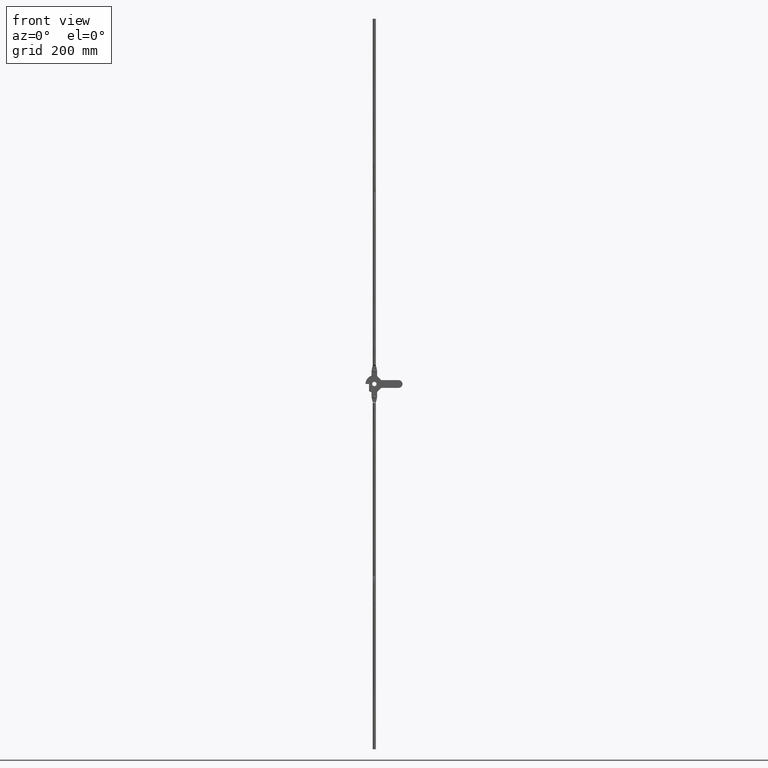
[diagram: clean part render]
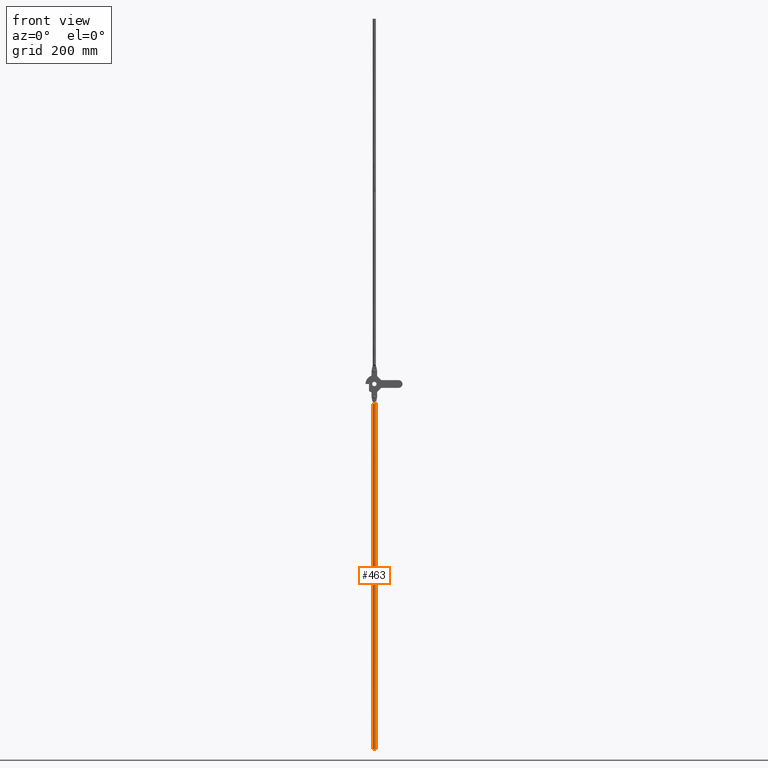
[diagram: same view with one face highlighted and labeled with its STEP entity id]
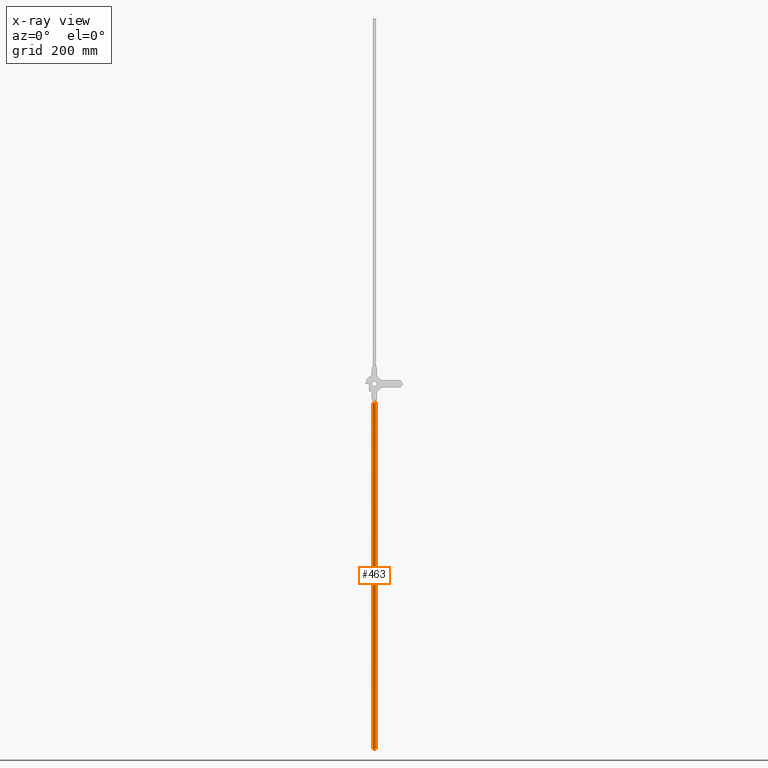
[diagram: x-ray of the same camera — body ghosted, the highlighted face saturated]
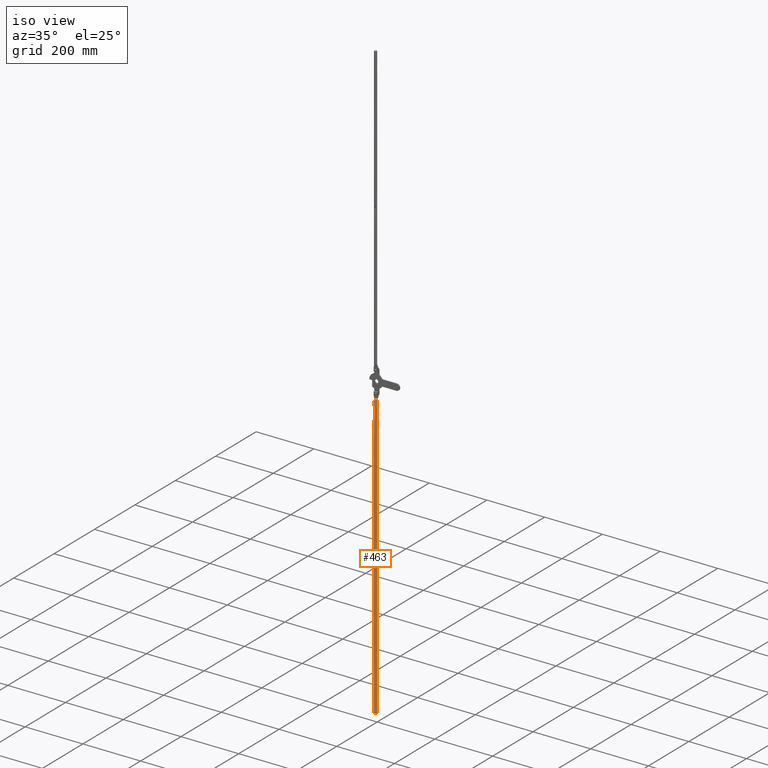
[diagram: same view with one face highlighted and labeled with its STEP entity id]
A machine part, front view. The second image highlights one B-rep face of the part: STEP entity #463.
The next image is the same camera in x-ray: the body ghosted, the highlighted face saturated — about 0% of this face is hidden behind the body in this view.
A second angle (iso view) of the same face is appended — the face is thin or edge-on in the first view.
In plain terms, the highlighted face is a freeform B-spline surface patch.
Its self-contained STEP definition (entity closure, byte-faithful):
#12=CARTESIAN_POINT('',(4.486127999967517,-7.346934045952233,-1037.003999999999900));
#13=VERTEX_POINT('',#12);
#27=CARTESIAN_POINT('',(5.637851E-014,-12.199999999999999,-1037.003999999999900));
#28=VERTEX_POINT('',#27);
#29=CARTESIAN_POINT('',(4.486127999967549,-7.346934045952231,-1037.003999999999900));
#30=CARTESIAN_POINT('',(4.500000000000056,-7.523194506775253,-1037.003999999999700));
#31=CARTESIAN_POINT('',(4.500000000000056,-7.700000000000000,-1037.003999999999900));
#32=CARTESIAN_POINT('',(4.500000000000056,-12.199999999999998,-1037.004000000000100));
#33=CARTESIAN_POINT('',(5.637851E-014,-12.199999999999999,-1037.003999999999900));
#41=(BOUNDED_CURVE()B_SPLINE_CURVE(2,(#29,#30,#31,#32,#33),.UNSPECIFIED.,.F.,.U.)B_SPLINE_CURVE_WITH_KNOTS((3,2,3),(0.236331299743477,0.250000000000000,0.500000000000000),.UNSPECIFIED.)CURVE()GEOMETRIC_REPRESENTATION_ITEM()RATIONAL_B_SPLINE_CURVE((0.969723354315934,0.983986121539482,1.0,0.707106781186547,1.0))REPRESENTATION_ITEM(''));
#42=EDGE_CURVE('',#13,#28,#41,.T.);
#44=CARTESIAN_POINT('',(-4.486127999967467,-8.053065954047764,-1037.003999999999900));
#45=VERTEX_POINT('',#44);
#46=CARTESIAN_POINT('',(5.637851E-014,-12.199999999999999,-1037.003999999999900));
#47=CARTESIAN_POINT('',(-4.159757190815786,-12.199999999999999,-1037.004000000000100));
#48=CARTESIAN_POINT('',(-4.486127999967437,-8.053065954047760,-1037.004000000000100));
#56=(BOUNDED_CURVE()B_SPLINE_CURVE(2,(#46,#47,#48),.UNSPECIFIED.,.F.,.U.)B_SPLINE_CURVE_WITH_KNOTS((3,3),(0.500000000000000,0.736331299743477),.UNSPECIFIED.)CURVE()GEOMETRIC_REPRESENTATION_ITEM()RATIONAL_B_SPLINE_CURVE((1.0,0.723120659647065,0.969723354315935))REPRESENTATION_ITEM(''));
#57=EDGE_CURVE('',#28,#45,#56,.T.);
#279=CARTESIAN_POINT('',(4.486130706923814,-7.346934913627599,-51.649709082939012));
#280=VERTEX_POINT('',#279);
#324=CARTESIAN_POINT('',(4.486127999967517,-7.346934045952233,-1037.003999999999900));
#325=CARTESIAN_POINT('',(4.486130706923814,-7.346934913627599,-51.649709082939012));
#326=QUASI_UNIFORM_CURVE('',1,(#324,#325),.UNSPECIFIED.,.F.,.U.);
#327=EDGE_CURVE('',#13,#280,#326,.T.);
#331=CARTESIAN_POINT('',(-4.486127944394353,-8.053065909465119,-51.649724650867093));
#332=VERTEX_POINT('',#331);
#333=CARTESIAN_POINT('',(-4.486127999967467,-8.053065954047764,-1037.003999999999900));
#334=CARTESIAN_POINT('',(-4.486127944394353,-8.053065909465119,-51.649724650867093));
#335=QUASI_UNIFORM_CURVE('',1,(#333,#334),.UNSPECIFIED.,.F.,.U.);
#336=EDGE_CURVE('',#45,#332,#335,.T.);
#391=CARTESIAN_POINT('',(-4.486128001799083,-8.053065930775244,-1061.638195072248900));
#392=CARTESIAN_POINT('',(-4.133062071023841,-12.539193932574323,-1061.638195072248900));
#393=CARTESIAN_POINT('',(0.353065930775239,-12.186128001799080,-1061.638195072248900));
#394=CARTESIAN_POINT('',(4.839193932574316,-11.833062071023836,-1061.638195072248900));
#395=CARTESIAN_POINT('',(4.486128001799075,-7.346934069224758,-1061.638195072248900));
#396=CARTESIAN_POINT('',(-4.486128001799142,-8.053065930775244,-26.386147160999030));
#397=CARTESIAN_POINT('',(-4.133062071023899,-12.539193932574323,-26.386147160999023));
#398=CARTESIAN_POINT('',(0.353065930775180,-12.186128001799080,-26.386147160999030));
#399=CARTESIAN_POINT('',(4.839193932574259,-11.833062071023836,-26.386147160999023));
#400=CARTESIAN_POINT('',(4.486128001799016,-7.346934069224758,-26.386147160999030));
#408=(BOUNDED_SURFACE()B_SPLINE_SURFACE(2,1,((#391,#396),(#392,#397),(#393,#398),(#394,#399),(#395,#400)),.UNSPECIFIED.,.F.,.F.,.U.)B_SPLINE_SURFACE_WITH_KNOTS((3,2,3),(2,2),(0.0,7.455844122715709,14.911688245431421),(0.0,1035.252047911250000),.UNSPECIFIED.)GEOMETRIC_REPRESENTATION_ITEM()RATIONAL_B_SPLINE_SURFACE(((1.0,1.0),(0.707106781186548,0.707106781186548),(1.0,1.0),(0.707106781186548,0.707106781186548),(1.0,1.0)))REPRESENTATION_ITEM('')SURFACE());
#409=CARTESIAN_POINT('',(4.416463181817520,-8.563048645008088,-51.863048645008107));
#410=VERTEX_POINT('',#409);
#411=CARTESIAN_POINT('',(4.486130706923814,-7.346934913627599,-51.649709082939012));
#412=CARTESIAN_POINT('',(4.489277159588139,-7.386936729587856,-51.639952006740778));
#413=CARTESIAN_POINT('',(4.491921344550894,-7.427413264587423,-51.631734696650867));
#414=CARTESIAN_POINT('',(4.497275632783683,-7.531304004571744,-51.615085302828007));
#415=CARTESIAN_POINT('',(4.499244198846466,-7.595602404254594,-51.608948896620113));
#416=CARTESIAN_POINT('',(4.500391898926946,-7.723928062490086,-51.605373382665412));
#417=CARTESIAN_POINT('',(4.499573173370024,-7.788417481926397,-51.607927867951453));
#418=CARTESIAN_POINT('',(4.493188948722559,-7.977868313382385,-51.627807310787247));
#419=CARTESIAN_POINT('',(4.483762342874667,-8.100372207682508,-51.657160181874332));
#420=CARTESIAN_POINT('',(4.462951314713640,-8.279368371073772,-51.721311996733697));
#421=CARTESIAN_POINT('',(4.454887315544647,-8.338226955290963,-51.746088970582669));
#422=CARTESIAN_POINT('',(4.436971795033183,-8.452753829140679,-51.800841436803772));
#423=CARTESIAN_POINT('',(4.427103505862043,-8.508598449042220,-51.830868366578258));
#424=CARTESIAN_POINT('',(4.416463181817520,-8.563048645008088,-51.863048645008107));
#425=B_SPLINE_CURVE_WITH_KNOTS('',3,(#411,#412,#413,#414,#415,#416,#417,#418,#419,#420,#421,#422,#423,#424),.UNSPECIFIED.,.F.,.U.,(4,2,2,2,2,2,4),(0.896070064359491,0.906249999999999,0.921874999999999,0.937500000000000,0.968750000000000,0.984375000000000,1.0),.UNSPECIFIED.);
#426=EDGE_CURVE('',#280,#410,#425,.T.);
#427=ORIENTED_EDGE('',*,*,#426,.T.);
#428=CARTESIAN_POINT('',(-4.416463181817520,-8.563048645008088,-51.863048645008107));
#429=VERTEX_POINT('',#428);
#430=CARTESIAN_POINT('',(-4.416463181817520,-8.563048645008088,-51.863048645008107));
#431=CARTESIAN_POINT('',(-4.332225385772826,-8.993197762846359,-52.293197762846319));
#432=CARTESIAN_POINT('',(-4.037023204123625,-9.842062701210805,-53.142062701210818));
#433=CARTESIAN_POINT('',(-3.175492839873021,-11.006856849703940,-54.306856849703941));
#434=CARTESIAN_POINT('',(-2.053020678327429,-11.777326976293629,-55.077326976293627));
#435=CARTESIAN_POINT('',(-0.920816273202743,-12.136156680484911,-55.436156680484892));
#436=CARTESIAN_POINT('',(0.076955254884288,-12.240305762071239,-55.540305762071327));
#437=CARTESIAN_POINT('',(1.150658221588118,-12.099118995830100,-55.399118995830051));
#438=CARTESIAN_POINT('',(2.095312592641437,-11.719292064230430,-55.019292064230527));
#439=CARTESIAN_POINT('',(3.048853770053056,-11.081760338984139,-54.381760338983838));
#440=CARTESIAN_POINT('',(3.944371396504082,-10.053640934206859,-53.353640934207611));
#441=CARTESIAN_POINT('',(4.310929971918312,-9.100413842647889,-52.400413842647453));
#442=CARTESIAN_POINT('',(4.416463181817520,-8.563048645008088,-51.863048645008107));
#443=B_SPLINE_CURVE_WITH_KNOTS('',3,(#430,#431,#432,#433,#434,#435,#436,#437,#438,#439,#440,#441,#442),.UNSPECIFIED.,.F.,.U.,(4,1,1,1,1,1,1,1,1,1,4),(0.001889966207690,1.844668977563263,3.687981255640016,5.530158388779192,6.451790828400439,7.372747665306292,8.524092425879804,9.675363193856452,10.596801992946050,12.439985313468020,14.743568288469350),.UNSPECIFIED.);
#444=EDGE_CURVE('',#429,#410,#443,.T.);
#445=ORIENTED_EDGE('',*,*,#444,.F.);
#446=CARTESIAN_POINT('',(-4.416463181817520,-8.563048645008088,-51.863048645008107));
#447=CARTESIAN_POINT('',(-4.437682231451955,-8.454464856584474,-51.798875328030533));
#448=CARTESIAN_POINT('',(-4.455656911547033,-8.341450978975809,-51.743794429102962));
#449=CARTESIAN_POINT('',(-4.473036537927574,-8.192788620514355,-51.690227873637248));
#450=CARTESIAN_POINT('',(-4.476255632387248,-8.162682909255683,-51.680286004312258));
#451=CARTESIAN_POINT('',(-4.481724735393579,-8.105999146648435,-51.663370466716437));
#452=CARTESIAN_POINT('',(-4.484043318306293,-8.079548521604391,-51.656188521393481));
#453=CARTESIAN_POINT('',(-4.486127944394353,-8.053065909465119,-51.649724650867093));
#454=B_SPLINE_CURVE_WITH_KNOTS('',3,(#446,#447,#448,#449,#450,#451,#452,#453),.UNSPECIFIED.,.F.,.U.,(4,2,2,4),(0.0,0.031249999999998,0.039062499999998,0.045764548459738),.UNSPECIFIED.);
#455=EDGE_CURVE('',#429,#332,#454,.T.);
#456=ORIENTED_EDGE('',*,*,#455,.T.);
#457=ORIENTED_EDGE('',*,*,#336,.F.);
#458=ORIENTED_EDGE('',*,*,#57,.F.);
#459=ORIENTED_EDGE('',*,*,#42,.F.);
#460=ORIENTED_EDGE('',*,*,#327,.T.);
#461=EDGE_LOOP('',(#427,#445,#456,#457,#458,#459,#460));
#462=FACE_OUTER_BOUND('',#461,.T.);
#463=ADVANCED_FACE('',(#462),#408,.T.);